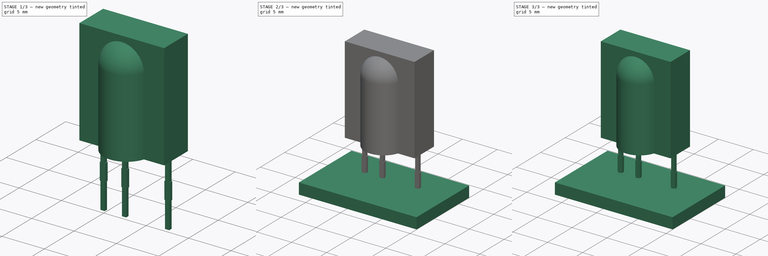
[diagram: build sequence overview — one tinted view per stage of 3, left to right]
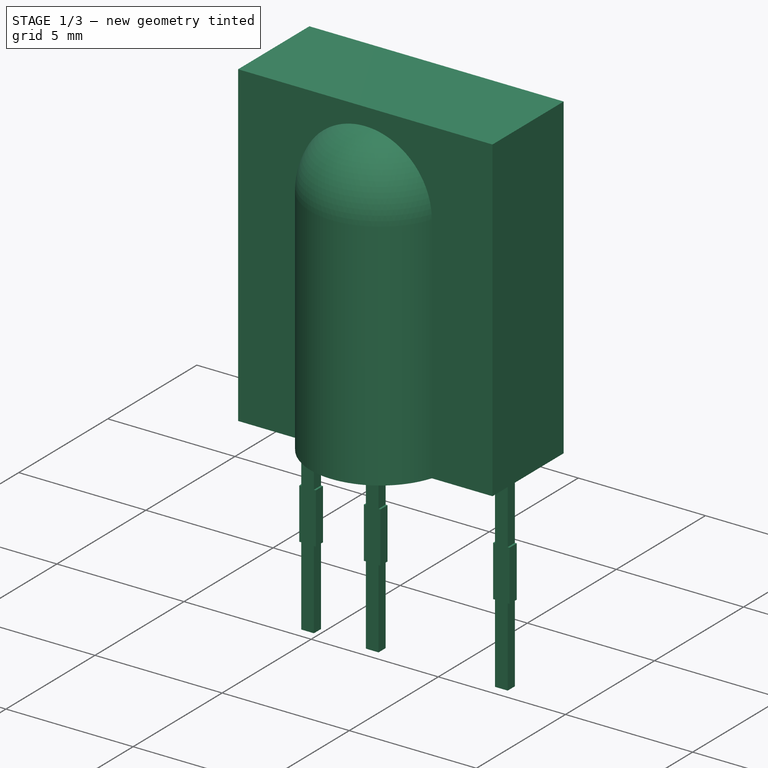
[diagram: stage 1 of 3 — iso view after this stage's code; geometry added in this stage tinted green]
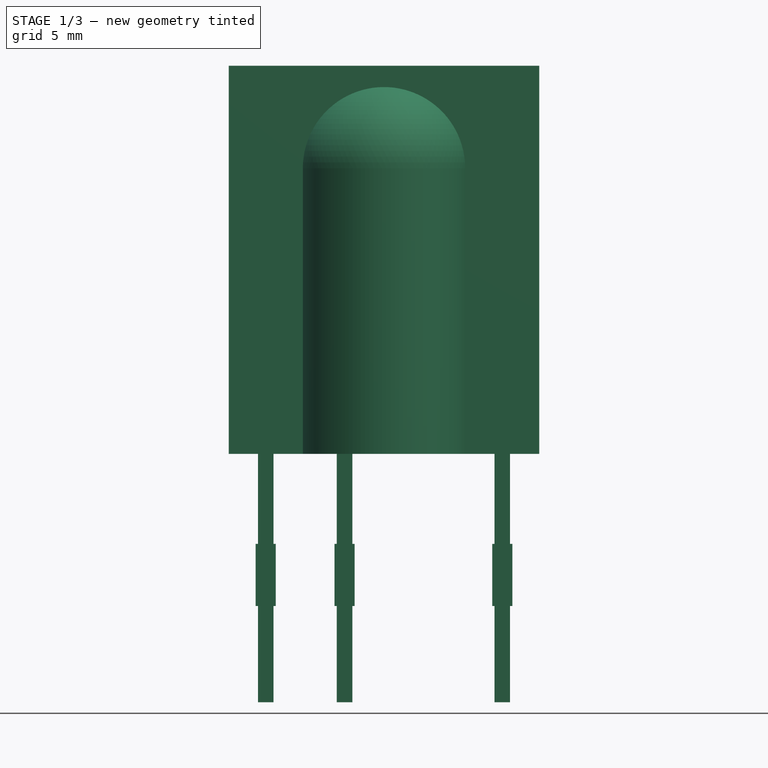
[diagram: stage 1 of 3 — front view after this stage's code; geometry added in this stage tinted green]
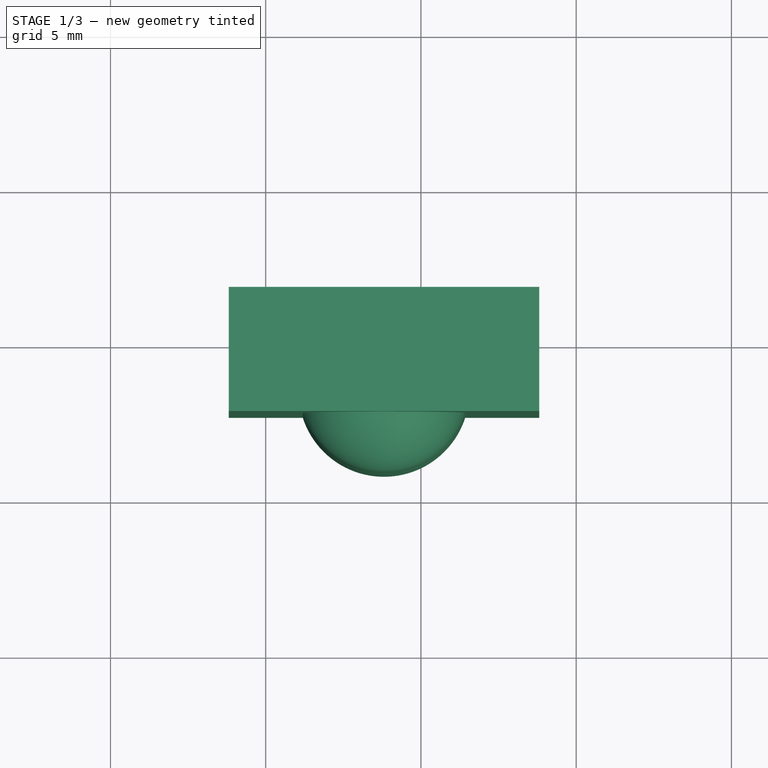
[diagram: stage 1 of 3 — top view after this stage's code; geometry added in this stage tinted green]
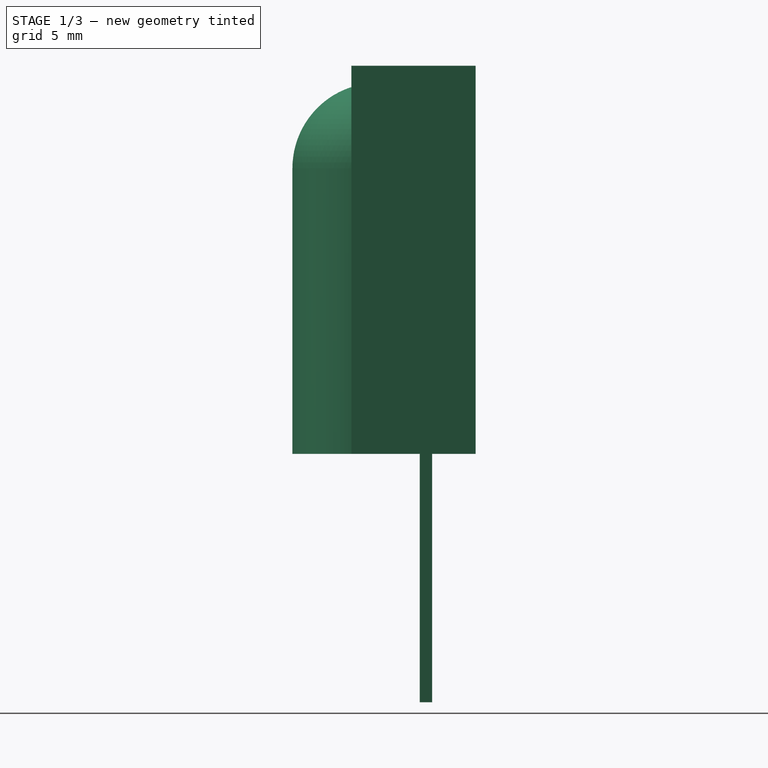
[diagram: stage 1 of 3 — right view after this stage's code; geometry added in this stage tinted green]
FCSTD DOCUMENT  (FreeCAD 0.16R6712 (Git))
Label: Vishay_CAST-3pin
License: All rights reserved
LicenseURL: http://en.wikipedia.org/wiki/All_rights_reserved
objects: Part::FeaturePython×7, Sketcher::SketchObject×3, PartDesign::Pad×2, PartDesign::Revolution×1, App::DocumentObjectGroup×1, Part::MultiFuse×1
note: 17 computed .brp shape members not serialized (recipe doc carries the construction recipe); baked Part::Feature solids carry a one-line shape summary decoded from their .brp

FEATURE [Sketcher::SketchObject] Sketch
  Placement = pos=(0,0,0) rot=(1,0,0;1.5708rad)
  sketch-geometry (47):
    g0: LineSegment StartX=0.325 StartY=0.1 StartZ=0 EndX=0.325 EndY=2.1 EndZ=0
    g1: LineSegment StartX=-0.325 StartY=2.1 StartZ=0 EndX=-0.325 EndY=0.1 EndZ=0
    g2: LineSegment StartX=0.25 StartY=5.1 StartZ=0 EndX=-0.25 EndY=5.1 EndZ=0
    g3: LineSegment StartX=0.25 StartY=-3 StartZ=0 EndX=-0.25 EndY=-3 EndZ=0
    g4: LineSegment StartX=-0.325 StartY=2.1 StartZ=0 EndX=-0.25 EndY=2.1 EndZ=0
    g5: LineSegment StartX=0.25 StartY=2.1 StartZ=0 EndX=0.325 EndY=2.1 EndZ=0
    g6: LineSegment StartX=-0.325 StartY=0.1 StartZ=0 EndX=-0.25 EndY=0.1 EndZ=0
    g7: LineSegment StartX=0.25 StartY=0.1 StartZ=0 EndX=0.325 EndY=0.1 EndZ=0
    g8: GeomPoint [constr] X=0 Y=5.1 Z=0
    g9: LineSegment [constr] StartX=-0.25 StartY=0.1 StartZ=0 EndX=0.25 EndY=0.1 EndZ=0
    g10: LineSegment [constr] StartX=-0.25 StartY=2.1 StartZ=0 EndX=0.25 EndY=2.1 EndZ=0
    g11: LineSegment StartX=-0.25 StartY=5.1 StartZ=0 EndX=-0.25 EndY=2.1 EndZ=0
    g12: LineSegment StartX=0.25 StartY=2.1 StartZ=0 EndX=0.25 EndY=5.1 EndZ=0
    g13: LineSegment StartX=0.25 StartY=0.1 StartZ=0 EndX=0.25 EndY=-3 EndZ=0
    g14: LineSegment StartX=-0.25 StartY=0.1 StartZ=0 EndX=-0.25 EndY=-3 EndZ=0
    g15: LineSegment StartX=2.865 StartY=0.1 StartZ=0 EndX=2.865 EndY=2.1 EndZ=0
    g16: LineSegment StartX=2.215 StartY=2.1 StartZ=0 EndX=2.215 EndY=0.1 EndZ=0
    g17: LineSegment StartX=2.79 StartY=-3 StartZ=0 EndX=2.29 EndY=-3 EndZ=0
    g18: LineSegment StartX=2.215 StartY=2.1 StartZ=0 EndX=2.29 EndY=2.1 EndZ=0
    g19: LineSegment StartX=2.79 StartY=2.1 StartZ=0 EndX=2.865 EndY=2.1 EndZ=0
    g20: LineSegment StartX=2.215 StartY=0.1 StartZ=0 EndX=2.29 EndY=0.1 EndZ=0
    g21: LineSegment StartX=2.79 StartY=0.1 StartZ=0 EndX=2.865 EndY=0.1 EndZ=0
    g22: GeomPoint [constr] X=2.54 Y=5.1 Z=0
    g23: LineSegment [constr] StartX=2.29 StartY=0.1 StartZ=0 EndX=2.79 EndY=0.1 EndZ=0
    g24: LineSegment [constr] StartX=2.29 StartY=2.1 StartZ=0 EndX=2.79 EndY=2.1 EndZ=0
    g25: LineSegment StartX=2.29 StartY=5.1 StartZ=0 EndX=2.29 EndY=2.1 EndZ=0
    g26: LineSegment StartX=2.79 StartY=2.1 StartZ=0 EndX=2.79 EndY=5.1 EndZ=0
    g27: LineSegment StartX=2.79 StartY=0.1 StartZ=0 EndX=2.79 EndY=-3 EndZ=0
    g28: LineSegment StartX=2.29 StartY=0.1 StartZ=0 EndX=2.29 EndY=-3 EndZ=0
    g29: LineSegment StartX=7.945 StartY=0.1 StartZ=0 EndX=7.945 EndY=2.1 EndZ=0
    g30: LineSegment StartX=7.295 StartY=2.1 StartZ=0 EndX=7.295 EndY=0.1 EndZ=0
    g31: LineSegment StartX=7.87 StartY=5.1 StartZ=0 EndX=7.37 EndY=5.1 EndZ=0
    g32: LineSegment StartX=7.87 StartY=-3 StartZ=0 EndX=7.37 EndY=-3 EndZ=0
    g33: LineSegment StartX=7.295 StartY=2.1 StartZ=0 EndX=7.37 EndY=2.1 EndZ=0
    g34: LineSegment StartX=7.87 StartY=2.1 StartZ=0 EndX=7.945 EndY=2.1 EndZ=0
    g35: LineSegment StartX=7.295 StartY=0.1 StartZ=0 EndX=7.37 EndY=0.1 EndZ=0
    g36: LineSegment StartX=7.87 StartY=0.1 StartZ=0 EndX=7.945 EndY=0.1 EndZ=0
    g37: GeomPoint [constr] X=7.62 Y=5.1 Z=0
    g38: LineSegment [constr] StartX=7.37 StartY=0.1 StartZ=0 EndX=7.87 EndY=0.1 EndZ=0
    g39: LineSegment [constr] StartX=7.37 StartY=2.1 StartZ=0 EndX=7.87 EndY=2.1 EndZ=0
    g40: LineSegment StartX=7.37 StartY=5.1 StartZ=0 EndX=7.37 EndY=2.1 EndZ=0
    g41: LineSegment StartX=7.87 StartY=2.1 StartZ=0 EndX=7.87 EndY=5.1 EndZ=0
    g42: LineSegment StartX=7.87 StartY=0.1 StartZ=0 EndX=7.87 EndY=-3 EndZ=0
    g43: LineSegment StartX=7.37 StartY=0.1 StartZ=0 EndX=7.37 EndY=-3 EndZ=0
    g44: LineSegment [constr] StartX=2.54 StartY=5.1 StartZ=0 EndX=7.62 EndY=5.1 EndZ=0
    g45: LineSegment StartX=2.29 StartY=5.1 StartZ=0 EndX=2.79 EndY=5.1 EndZ=0
    g46: LineSegment [constr] StartX=0 StartY=5.1 StartZ=0 EndX=2.54 EndY=5.1 EndZ=0
  constraints (128):
    c: Vertical(g0)
    c: Vertical(g1)
    c: Horizontal(g2)
    c: Horizontal(g3)
    c: Coincident(g4,g1)
    c: Coincident(g5,g0)
    c: Horizontal(g5)
    c: Coincident(g6,g1)
    c: Horizontal(g6)
    c: Coincident(g7,g0)
    c: Horizontal(g7)
    c: Horizontal(g4)
    c: Equal(g5,g4)
    c: Equal(g4,g6)
    c: Equal(g6,g7)
    c: PointOnObject(g8,g-2)
    c: Symmetric(g2,g2,g8)
    c: DistanceX(g2,g2) = 0.5
    c: DistanceX(g1,g0) = 0.65
    c: Horizontal(g9)
    c: DistanceY(g-1,g1) = 0.1
    c: DistanceY(g1,g1) = 2
    c: DistanceY(g4,g2) = 3
    c: Horizontal(g10)
    c: Coincident(g11,g2)
    c: Coincident(g11,g4)
    c: Vertical(g11)
    c: Coincident(g12,g5)
    c: Coincident(g12,g2)
    c: Vertical(g12)
    c: Coincident(g13,g3)
    c: Vertical(g13)
    c: Coincident(g14,g6)
    c: Coincident(g14,g3)
    c: Vertical(g14)
    c: Coincident(g7,g9)
    c: Coincident(g7,g13)
    c: DistanceY(g3,g-1) = 3
    c: Coincident(g9,g6)
    c: Vertical(g15)
    c: Vertical(g16)
    c: Horizontal(g17)
    c: Coincident(g18,g16)
    c: Coincident(g19,g15)
    c: Horizontal(g19)
    c: Coincident(g20,g16)
    c: Horizontal(g20)
    c: Coincident(g21,g15)
    c: Horizontal(g21)
    c: Horizontal(g18)
    c: Equal(g19,g18)
    c: Equal(g18,g20)
    c: Equal(g20,g21)
    c: Symmetric(g26,g25,g22)
    c: Horizontal(g23)
    c: Equal(g1,g16) = 2
    c: Horizontal(g24)
    c: Coincident(g25,g18)
    c: Vertical(g25)
    c: Coincident(g26,g19)
    c: Vertical(g26)
    c: Coincident(g27,g17)
    c: Vertical(g27)
    c: Coincident(g28,g20)
    c: Coincident(g28,g17)
    c: Vertical(g28)
    c: Coincident(g21,g23)
    c: Coincident(g21,g27)
    c: Coincident(g23,g20)
    c: DistanceX(g8,g22) = 2.54
    c: Coincident(g24,g19)
    c: Coincident(g24,g18)
    c: Coincident(g10,g5)
    c: Coincident(g10,g4)
    c: Equal(g16,g1)
    c: Equal(g28,g14)
    c: Vertical(g29)
    c: Vertical(g30)
    c: Horizontal(g31)
    c: Horizontal(g32)
    c: Coincident(g33,g30)
    c: Coincident(g34,g29)
    c: Horizontal(g34)
    c: Coincident(g35,g30)
    c: Horizontal(g35)
    c: Coincident(g36,g29)
    c: Horizontal(g36)
    c: Horizontal(g33)
    c: Equal(g34,g33)
    c: Equal(g33,g35)
    c: Equal(g35,g36)
    c: Symmetric(g31,g31,g37)
    c: Horizontal(g38)
    c: Horizontal(g39)
    c: Coincident(g40,g31)
    c: Coincident(g40,g33)
    c: Vertical(g40)
    c: Coincident(g41,g34)
    c: Coincident(g41,g31)
    c: Vertical(g41)
    c: Coincident(g42,g32)
    c: Vertical(g42)
    c: Coincident(g43,g35)
    c: Coincident(g43,g32)
    c: Vertical(g43)
    c: Coincident(g36,g38)
    c: Coincident(g36,g42)
    c: Coincident(g38,g35)
    c: Coincident(g39,g34)
    c: Coincident(g39,g33)
    c: Coincident(g44,g22)
    c: Coincident(g44,g37)
    c: Horizontal(g44)
    c: DistanceX(g44,g44) = 5.08
    c: Coincident(g45,g25)
    c: Coincident(g45,g26)
    c: Horizontal(g45)
    c: Equal(g45,g2)
    c: Equal(g2,g31)
    c: Equal(g19,g34)
    c: Equal(g34,g5)
    c: Coincident(g46,g8)
    c: Coincident(g46,g22)
    c: Horizontal(g46)
    c: Equal(g25,g11)
    c: Equal(g11,g40)
    c: Equal(g43,g28)
    c: Equal(g30,g16)
FEATURE [PartDesign::Pad] Pad
  Length = 0.4
  Length2 = 100
  Midplane = true
  Placement = pos=(0,0,0) rot=(1,0,0;1.5708rad)
  Sketch = -> Sketch
  Type = 0
FEATURE [Sketcher::SketchObject] Sketch001
  Placement = pos=(0,0,0) rot=(1,0,0;1.5708rad)
  expr: Constraints[10] = (10 - 2.54 - 5.08) / 2
  sketch-geometry (4):
    g0: LineSegment StartX=-1.19 StartY=5 StartZ=0 EndX=8.81 EndY=5 EndZ=0
    g1: LineSegment StartX=8.81 StartY=5 StartZ=0 EndX=8.81 EndY=17.5 EndZ=0
    g2: LineSegment StartX=8.81 StartY=17.5 StartZ=0 EndX=-1.19 EndY=17.5 EndZ=0
    g3: LineSegment StartX=-1.19 StartY=17.5 StartZ=0 EndX=-1.19 EndY=5 EndZ=0
  constraints (12):
    c: Coincident(g0,g1)
    c: Coincident(g1,g2)
    c: Coincident(g2,g3)
    c: Coincident(g3,g0)
    c: Horizontal(g0)
    c: Horizontal(g2)
    c: Vertical(g1)
    c: Vertical(g3)
    c: DistanceX(g2,g2) = 10
    c: DistanceY(g1,g1) = 12.5
    c: DistanceX(g0,g-1) = 1.19
    c: DistanceY(g-1,g0) = 5
FEATURE [PartDesign::Pad] Pad001
  Length = 2.4
  Length2 = 1.6
  Placement = pos=(0,0,0) rot=(1,0,0;1.5708rad)
  Sketch = -> Sketch001
  Type = 4
  expr: Length = 4 - 1.6
FEATURE [Sketcher::SketchObject] Sketch002
  Placement = pos=(0,-1.55,0) rot=(1,0,0;1.5708rad)
  expr: Placement.Base.y = -1 * (4.3 - 2.75)
  expr: Constraints[2] = 2.54 * 1.5
  sketch-geometry (7):
    g0: LineSegment StartX=6.56 StartY=5 StartZ=0 EndX=6.56 EndY=14.2 EndZ=0
    g1: GeomPoint [constr] X=3.81 Y=5 Z=0
    g2: LineSegment [constr] StartX=3.81 StartY=5 StartZ=0 EndX=3.81 EndY=16.95 EndZ=0
    g3: LineSegment StartX=6.56 StartY=5 StartZ=0 EndX=3.81 EndY=5 EndZ=0
    g4: LineSegment StartX=3.81 StartY=5 StartZ=0 EndX=3.81 EndY=16.95 EndZ=0
    g5: ArcOfCircle CenterX=3.81 CenterY=14.2 CenterZ=0 NormalX=0 NormalY=0 NormalZ=1 Radius=2.75 StartAngle=0 EndAngle=1.5708
    g6: LineSegment [constr] StartX=3.81 StartY=14.2 StartZ=0 EndX=6.56 EndY=14.2 EndZ=0
  constraints (19):
    c: Vertical(g0)
    c: DistanceY(g0,g0) = 9.2
    c: DistanceX(g-1,g1) = 3.81
    c: Coincident(g2,g1)
    c: Vertical(g2)
    c: DistanceX(g1,g0) = 2.75
    c: DistanceY(g-1,g1) = 5
    c: Coincident(g3,g0)
    c: Coincident(g3,g1)
    c: Horizontal(g3)
    c: Coincident(g4,g1)
    c: PointOnObject(g4,g2)
    c: PointOnObject(g5,g2)
    c: Coincident(g5,g0)
    c: Coincident(g5,g4)
    c: Coincident(g2,g4)
    c: Coincident(g6,g5)
    c: Coincident(g6,g0)
    c: Horizontal(g6)
FEATURE [PartDesign::Revolution] Revolution
  Angle = 360
  Axis = (0,0,11.95)
  Base = (3.81,-1.55,5)
  Placement = pos=(0,-1.55,0) rot=(1,0,0;1.5708rad)
  ReferenceAxis = -> Sketch002 [Axis0]
  Reversed = true
  Sketch = -> Sketch002
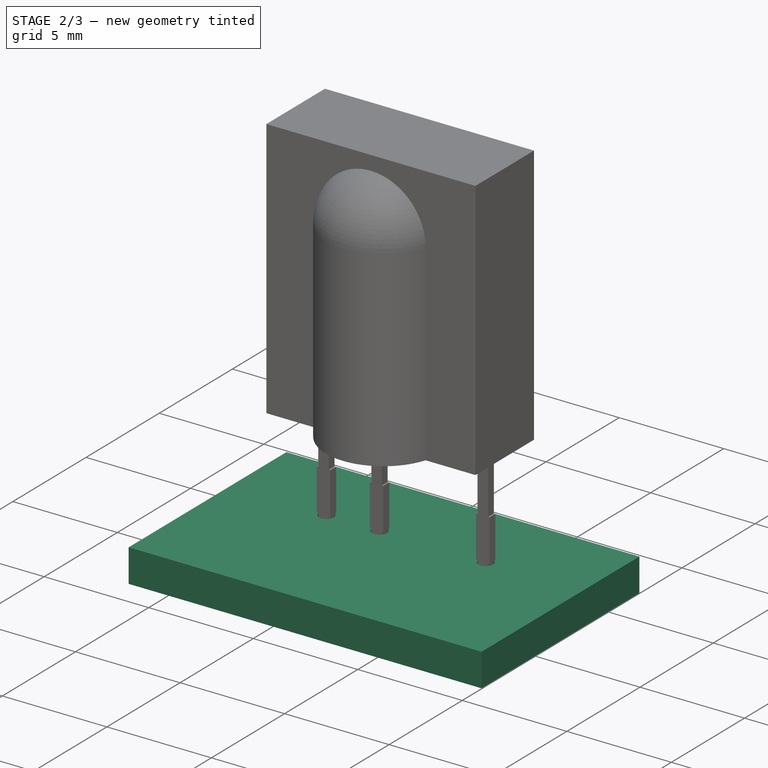
[diagram: stage 2 of 3 — iso view after this stage's code; geometry added in this stage tinted green]
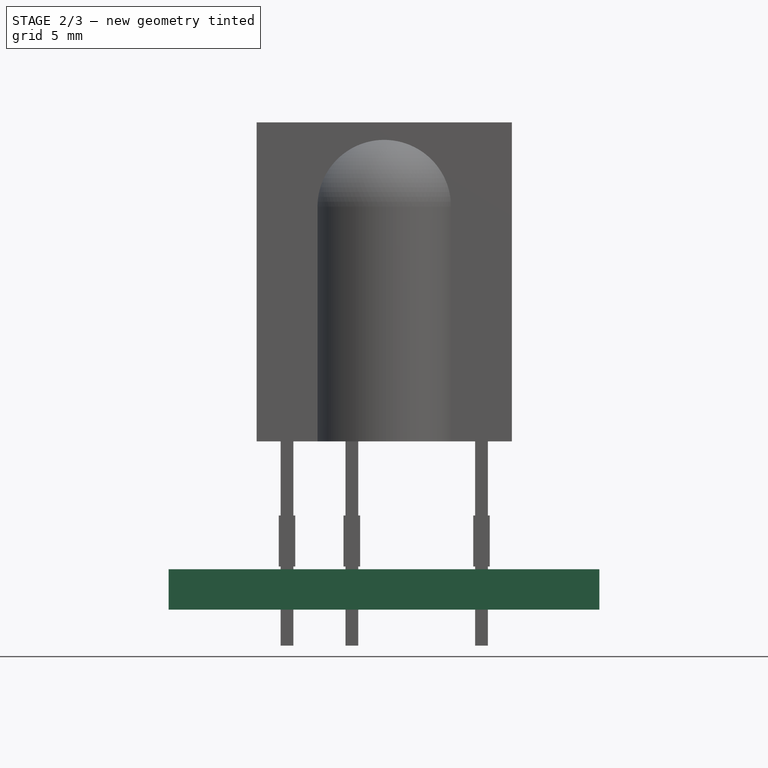
[diagram: stage 2 of 3 — front view after this stage's code; geometry added in this stage tinted green]
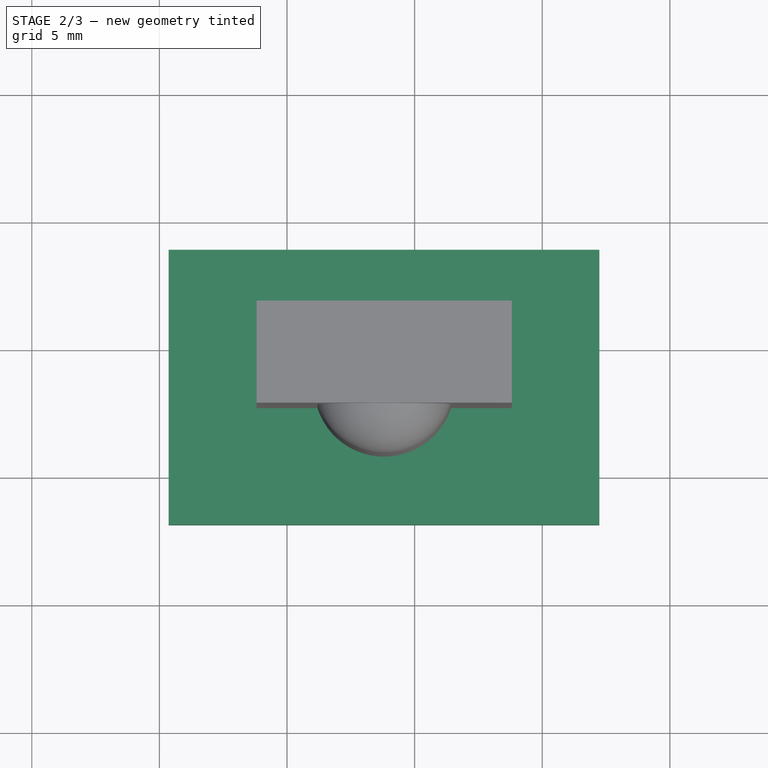
[diagram: stage 2 of 3 — top view after this stage's code; geometry added in this stage tinted green]
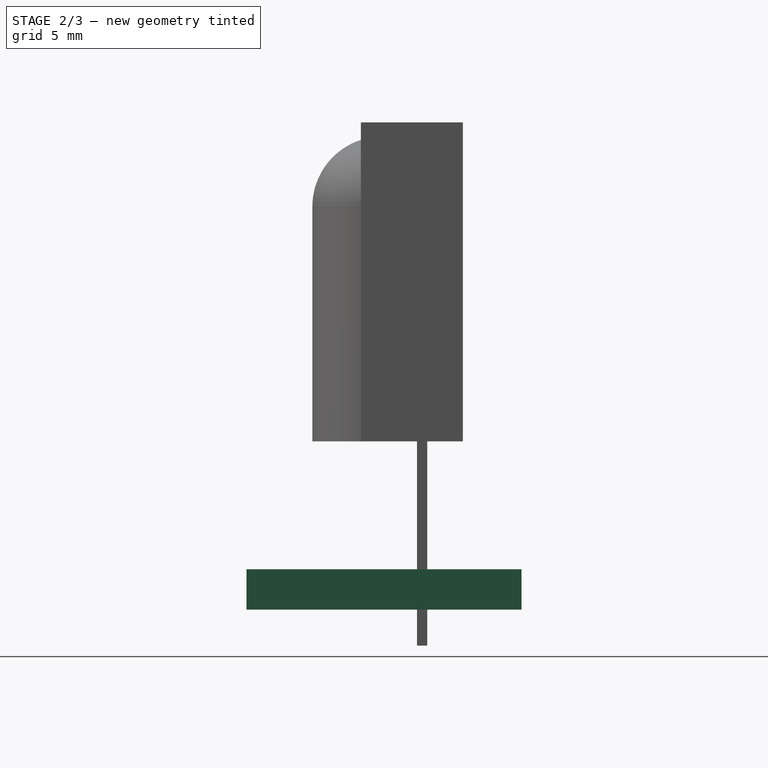
[diagram: stage 2 of 3 — right view after this stage's code; geometry added in this stage tinted green]
FEATURE [Part::FeaturePython] newPCB  label="Pcb"  # a2plus imported part (geometry in sourceFile) (typed FeaturePython)
  fixedPosition = true
FEATURE [App::DocumentObjectGroup] IRReceiver_Vishay_CAST_3pin_fp
  Group = -> [FCrtYd_lines,FFab_lines,Filk_lines,TopPads,BotPads,THPs,newPCB]
FEATURE [Part::MultiFuse] Revolution_mp_cp  label="Vishay_CAST-3pin"
  Shapes = -> [Revolution,Pad,Pad001]
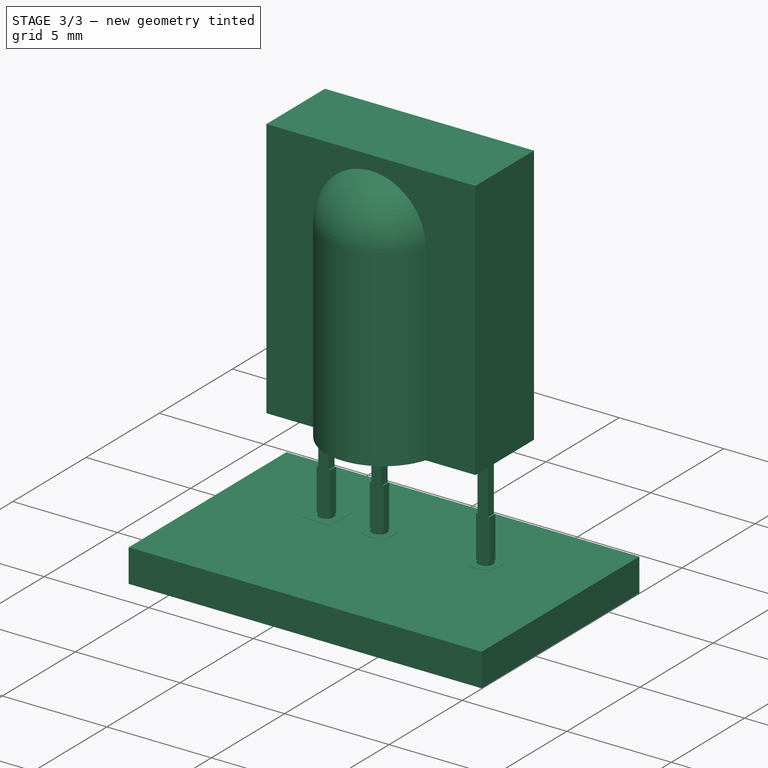
[diagram: stage 3 of 3 — iso view after this stage's code; geometry added in this stage tinted green]
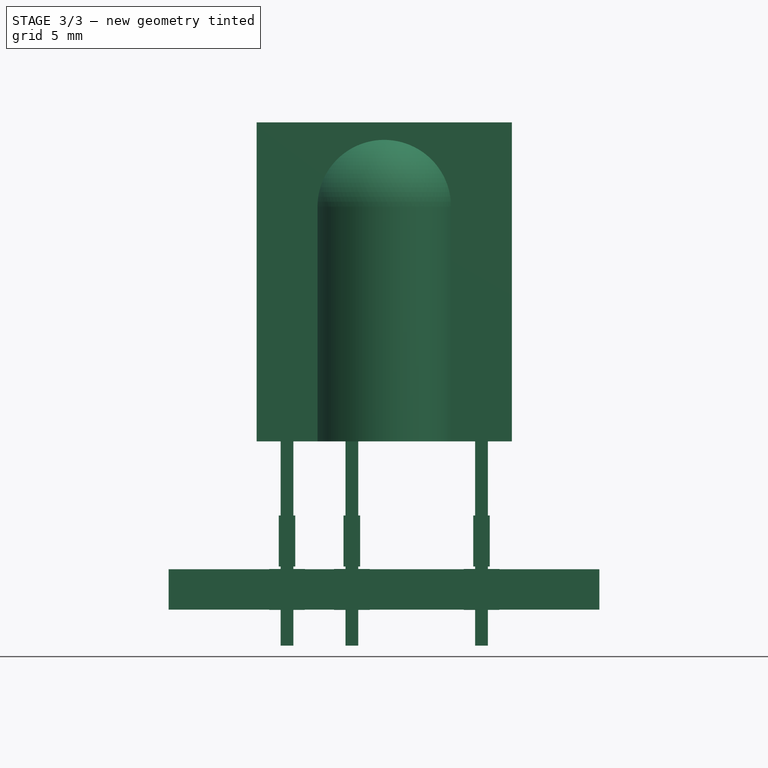
[diagram: stage 3 of 3 — front view after this stage's code; geometry added in this stage tinted green]
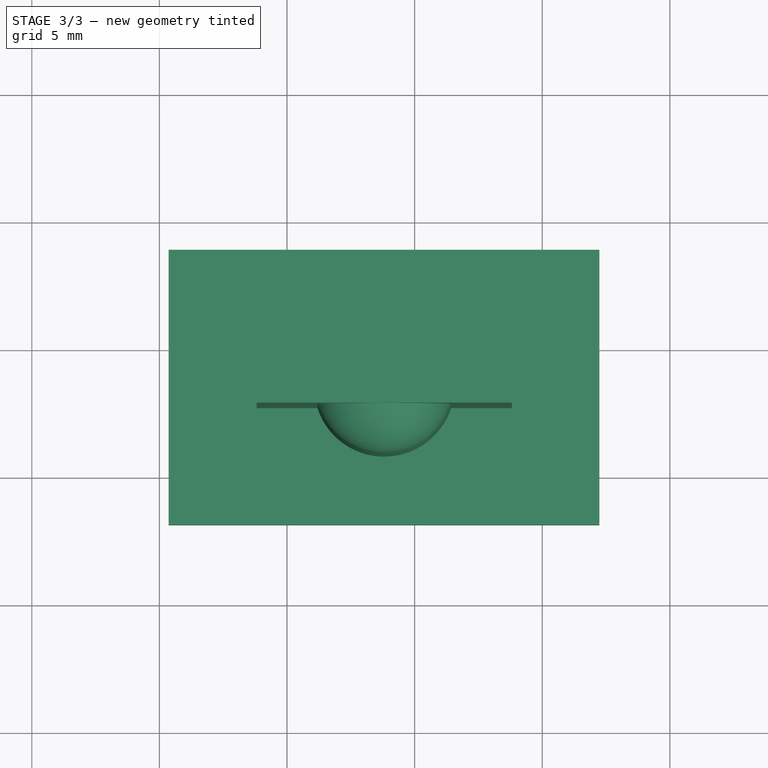
[diagram: stage 3 of 3 — top view after this stage's code; geometry added in this stage tinted green]
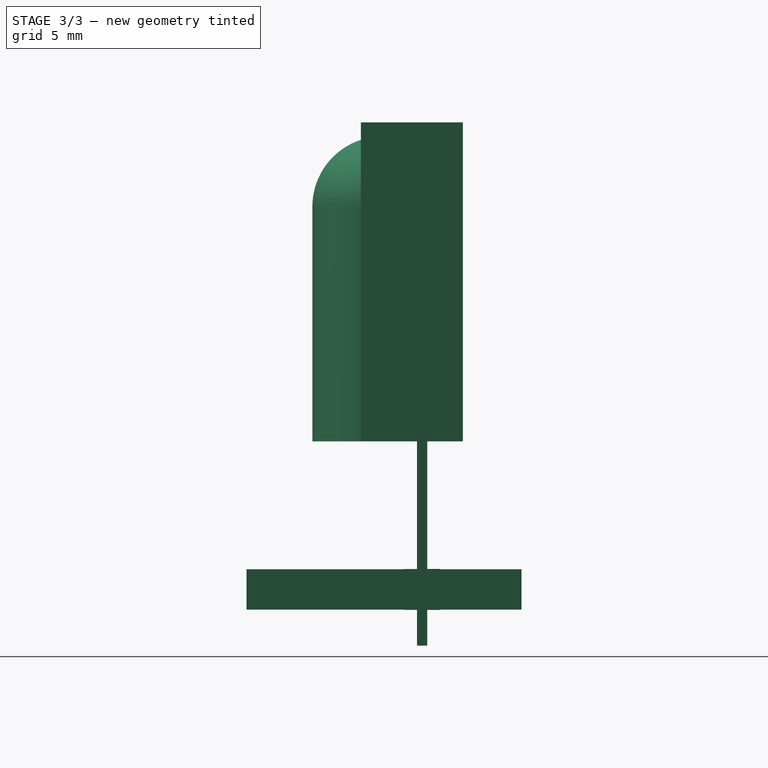
[diagram: stage 3 of 3 — right view after this stage's code; geometry added in this stage tinted green]
FEATURE [Part::FeaturePython] FCrtYd_lines  label="FCrtYd"  # a2plus imported part (geometry in sourceFile) (typed FeaturePython)
  fixedPosition = true
FEATURE [Part::FeaturePython] FFab_lines  label="FFab"  # a2plus imported part (geometry in sourceFile) (typed FeaturePython)
  fixedPosition = true
FEATURE [Part::FeaturePython] Filk_lines  label="FrontSilk"  # a2plus imported part (geometry in sourceFile) (typed FeaturePython)
  fixedPosition = true
FEATURE [Part::FeaturePython] TopPads  # a2plus imported part (geometry in sourceFile) (typed FeaturePython)
  fixedPosition = true
FEATURE [Part::FeaturePython] BotPads  # a2plus imported part (geometry in sourceFile) (typed FeaturePython)
  fixedPosition = true
FEATURE [Part::FeaturePython] THPs  label="PTHs"  # a2plus imported part (geometry in sourceFile) (typed FeaturePython)
  fixedPosition = true
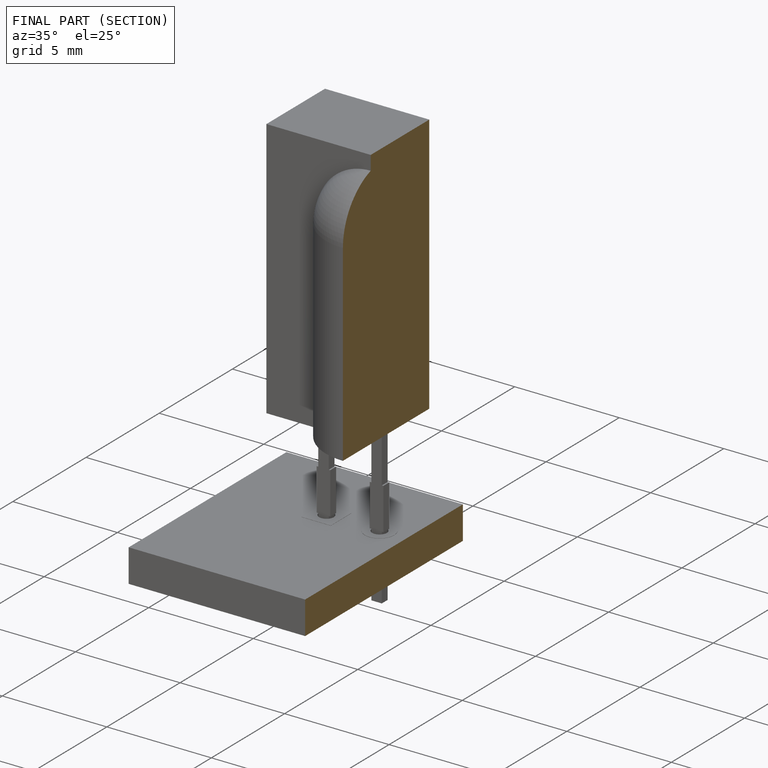
[diagram: finished part — half-section view (interior)]
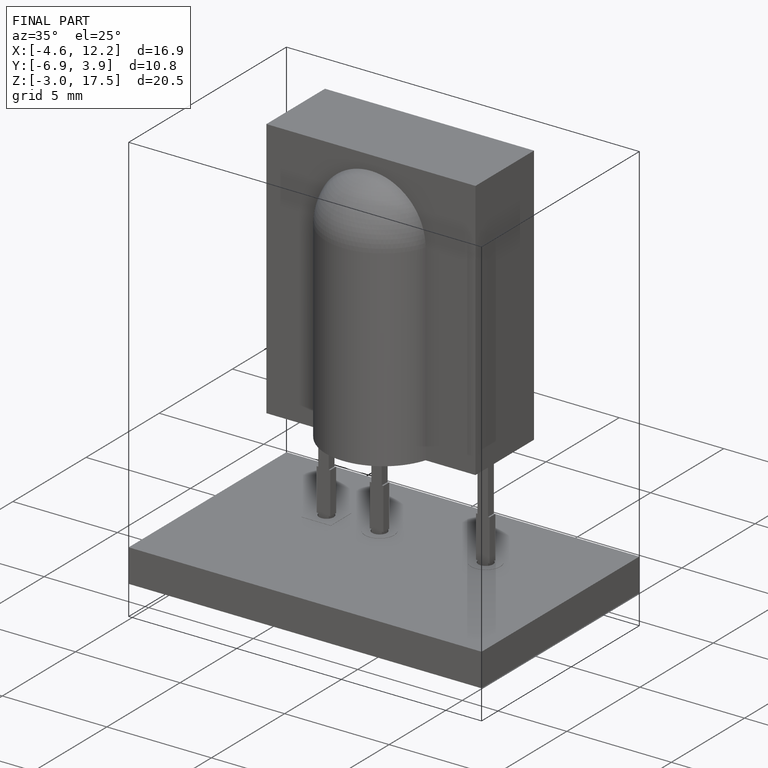
[diagram: finished part — iso view with bounding-box wireframe]
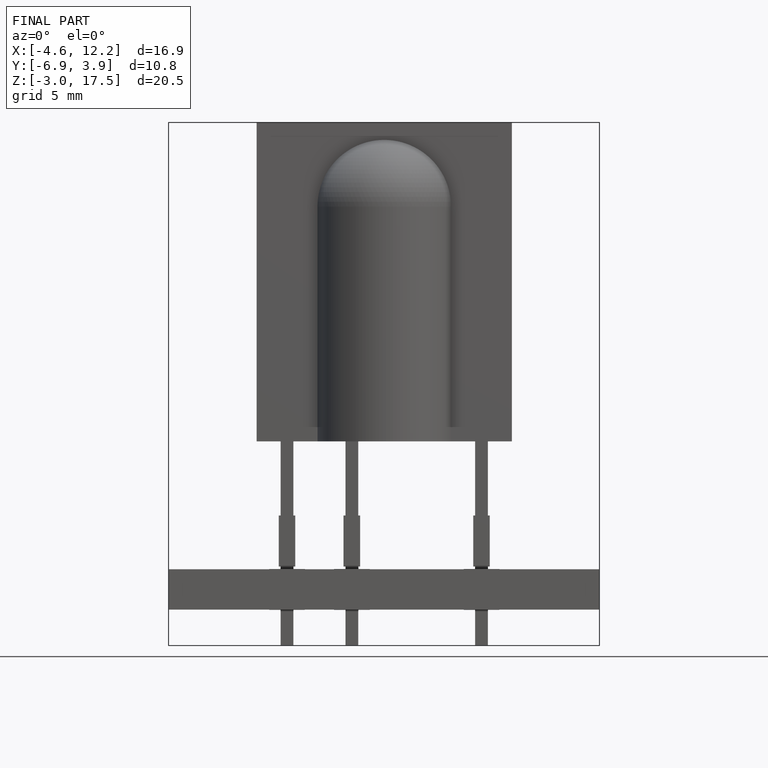
[diagram: finished part — front view with bounding-box wireframe]
